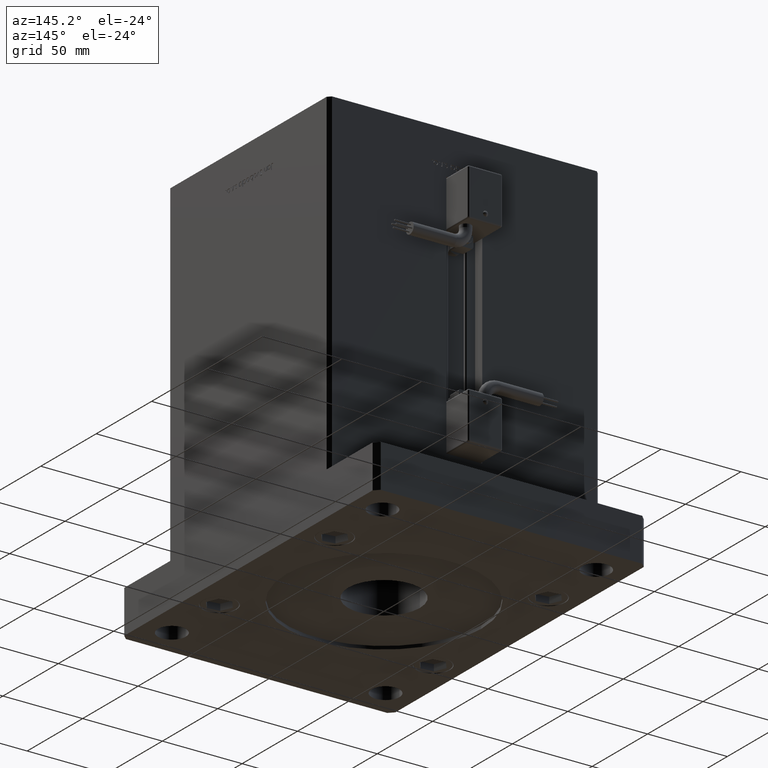
[diagram: clean part render]
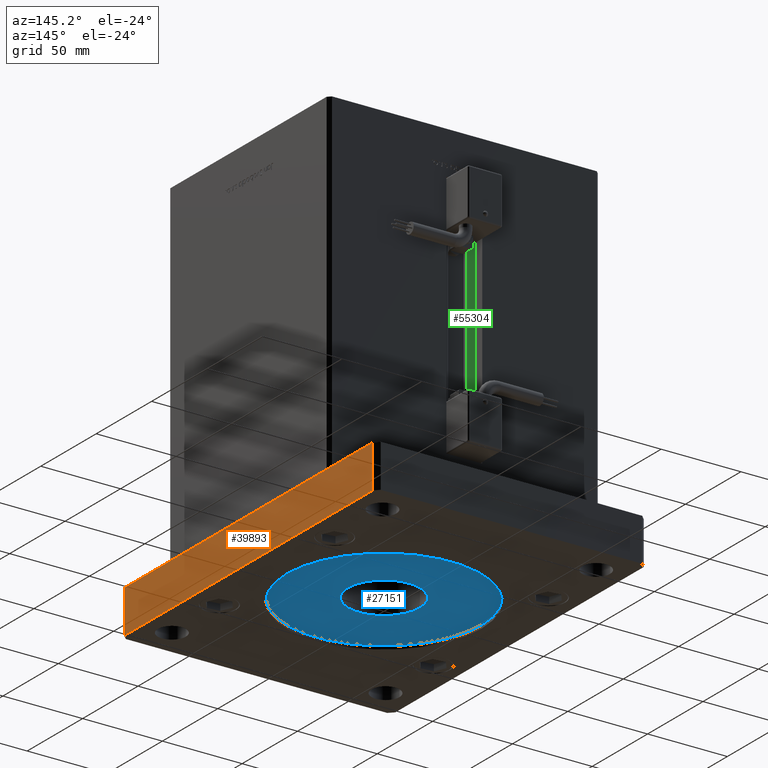
[diagram: same view with three faces highlighted in distinct colors, each labeled with its STEP entity id]
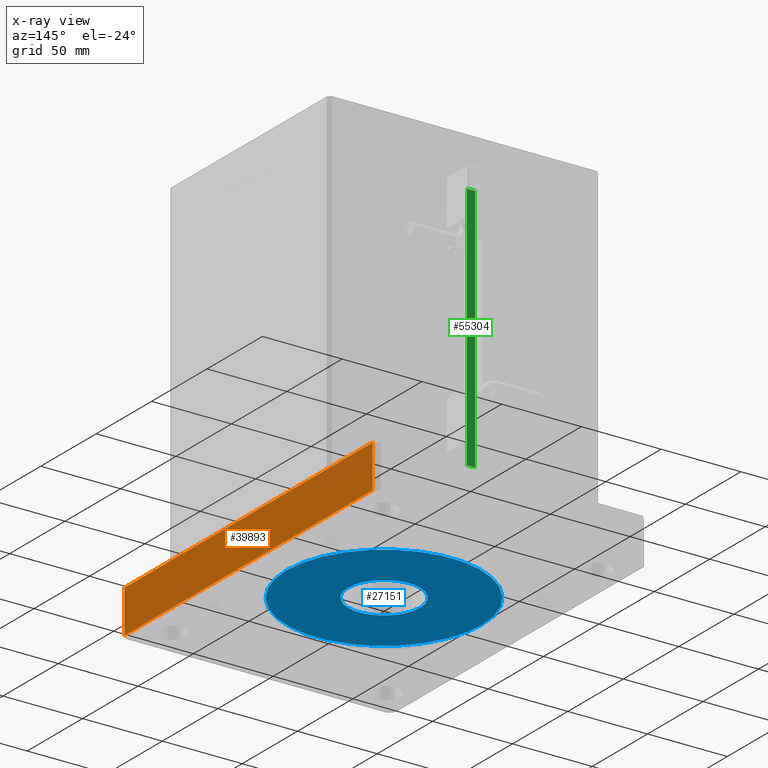
[diagram: x-ray of the same camera — body ghosted, the three highlighted faces saturated]
A machine part, auxiliary view with three faces highlighted in distinct colors.
The next image is the same camera in x-ray (body ghosted, the three faces saturated) — at least one of them is partly hidden behind the body in this view.
Their STEP definitions:

[orange] entity #39893 — the highlighted planar face has unit normal (-1, 0, 0).
#1507 = AXIS2_PLACEMENT_3D ( 'NONE', #36456, #54688, #33015 ) ;
#2056 = DIRECTION ( 'NONE',  ( 0.000000000000000000, 1.000000000000000000, 0.000000000000000000 ) ) ;
#7297 = ORIENTED_EDGE ( 'NONE', *, *, #28435, .F. ) ;
#7803 = VERTEX_POINT ( 'NONE', #39460 ) ;
#11459 = EDGE_LOOP ( 'NONE', ( #16509, #23719, #7297, #39940 ) ) ;
#12629 = DIRECTION ( 'NONE',  ( -0.000000000000000000, -0.000000000000000000, -1.000000000000000000 ) ) ;
#16509 = ORIENTED_EDGE ( 'NONE', *, *, #27678, .T. ) ;
#16625 = EDGE_CURVE ( 'NONE', #22920, #7803, #26181, .T. ) ;
#17377 = CARTESIAN_POINT ( 'NONE',  ( 85.00000000000001421, 112.0000000000000142, 27.00000000000000000 ) ) ;
#19167 = CARTESIAN_POINT ( 'NONE',  ( 85.00000000000001421, -111.9999999999999005, 27.00000000000000000 ) ) ;
#19940 = VECTOR ( 'NONE', #12629, 1000.000000000000000 ) ;
#22920 = VERTEX_POINT ( 'NONE', #44842 ) ;
#23333 = PLANE ( 'NONE',  #1507 ) ;
#23719 = ORIENTED_EDGE ( 'NONE', *, *, #41602, .F. ) ;
#25333 = DIRECTION ( 'NONE',  ( -0.000000000000000000, -0.000000000000000000, -1.000000000000000000 ) ) ;
#25747 = LINE ( 'NONE', #26316, #19940 ) ;
#26181 = LINE ( 'NONE', #43601, #41035 ) ;
#26316 = CARTESIAN_POINT ( 'NONE',  ( 85.00000000000001421, 112.0000000000000142, 27.00000000000000000 ) ) ;
#27093 = VERTEX_POINT ( 'NONE', #17377 ) ;
#27678 = EDGE_CURVE ( 'NONE', #7803, #28239, #28254, .T. ) ;
#28239 = VERTEX_POINT ( 'NONE', #52016 ) ;
#28254 = LINE ( 'NONE', #36814, #35865 ) ;
#28301 = LINE ( 'NONE', #19167, #54034 ) ;
#28435 = EDGE_CURVE ( 'NONE', #22920, #27093, #28301, .T. ) ;
#33015 = DIRECTION ( 'NONE',  ( 0.000000000000000000, 0.000000000000000000, 1.000000000000000000 ) ) ;
#35865 = VECTOR ( 'NONE', #45940, 1000.000000000000000 ) ;
#36456 = CARTESIAN_POINT ( 'NONE',  ( 85.00000000000001421, -111.9999999999999005, 27.00000000000000000 ) ) ;
#36814 = CARTESIAN_POINT ( 'NONE',  ( 85.00000000000001421, -111.9999999999999005, 0.000000000000000000 ) ) ;
#39460 = CARTESIAN_POINT ( 'NONE',  ( 85.00000000000001421, -111.9999999999999005, 0.000000000000000000 ) ) ;
#39893 = ADVANCED_FACE ( 'NONE', ( #45028 ), #23333, .F. ) ;
#39940 = ORIENTED_EDGE ( 'NONE', *, *, #16625, .T. ) ;
#41035 = VECTOR ( 'NONE', #25333, 1000.000000000000000 ) ;
#41602 = EDGE_CURVE ( 'NONE', #27093, #28239, #25747, .T. ) ;
#43601 = CARTESIAN_POINT ( 'NONE',  ( 85.00000000000001421, -111.9999999999999005, 27.00000000000000000 ) ) ;
#44842 = CARTESIAN_POINT ( 'NONE',  ( 85.00000000000001421, -111.9999999999999005, 27.00000000000000000 ) ) ;
#45028 = FACE_OUTER_BOUND ( 'NONE', #11459, .T. ) ;
#45940 = DIRECTION ( 'NONE',  ( 0.000000000000000000, 1.000000000000000000, 0.000000000000000000 ) ) ;
#52016 = CARTESIAN_POINT ( 'NONE',  ( 85.00000000000001421, 112.0000000000000142, 0.000000000000000000 ) ) ;
#54034 = VECTOR ( 'NONE', #2056, 1000.000000000000000 ) ;
#54688 = DIRECTION ( 'NONE',  ( -1.000000000000000000, 0.000000000000000000, 0.000000000000000000 ) ) ;

[blue] entity #27151 — the highlighted planar face has unit normal (0, 0, -1).
#284 = CIRCLE ( 'NONE', #46747, 61.00000000000000000 ) ;
#1706 = DIRECTION ( 'NONE',  ( -1.000000000000000000, 0.000000000000000000, 0.000000000000000000 ) ) ;
#3041 = ORIENTED_EDGE ( 'NONE', *, *, #52864, .T. ) ;
#3743 = EDGE_CURVE ( 'NONE', #21559, #17177, #12586, .T. ) ;
#6581 = CARTESIAN_POINT ( 'NONE',  ( -22.50000000000000355, 2.755455298081545172E-15, 2.000000000000000000 ) ) ;
#7914 = CARTESIAN_POINT ( 'NONE',  ( 0.000000000000000000, 0.000000000000000000, 2.000000000000000000 ) ) ;
#8970 = EDGE_CURVE ( 'NONE', #17177, #21559, #31907, .T. ) ;
#9100 = DIRECTION ( 'NONE',  ( -1.000000000000000000, 0.000000000000000000, -0.000000000000000000 ) ) ;
#10352 = EDGE_LOOP ( 'NONE', ( #32741, #48474 ) ) ;
#12413 = AXIS2_PLACEMENT_3D ( 'NONE', #21010, #29576, #34131 ) ;
#12586 = CIRCLE ( 'NONE', #17144, 22.50000000000000355 ) ;
#13369 = CARTESIAN_POINT ( 'NONE',  ( 0.000000000000000000, 0.000000000000000000, 2.000000000000000000 ) ) ;
#15655 = ORIENTED_EDGE ( 'NONE', *, *, #43581, .T. ) ;
#17144 = AXIS2_PLACEMENT_3D ( 'NONE', #7914, #25301, #1706 ) ;
#17177 = VERTEX_POINT ( 'NONE', #6581 ) ;
#21010 = CARTESIAN_POINT ( 'NONE',  ( 0.000000000000000000, 0.000000000000000000, 2.000000000000000000 ) ) ;
#21559 = VERTEX_POINT ( 'NONE', #42361 ) ;
#23969 = DIRECTION ( 'NONE',  ( -1.000000000000000000, 0.000000000000000000, 0.000000000000000000 ) ) ;
#24568 = EDGE_LOOP ( 'NONE', ( #15655, #3041 ) ) ;
#24600 = CARTESIAN_POINT ( 'NONE',  ( 61.00000000000000000, 7.470345474798855081E-15, 2.000000000000000000 ) ) ;
#25301 = DIRECTION ( 'NONE',  ( -0.000000000000000000, -0.000000000000000000, 1.000000000000000000 ) ) ;
#26665 = VERTEX_POINT ( 'NONE', #32023 ) ;
#26785 = FACE_OUTER_BOUND ( 'NONE', #24568, .T. ) ;
#27151 = ADVANCED_FACE ( 'NONE', ( #26785, #35050 ), #52437, .T. ) ;
#27967 = CARTESIAN_POINT ( 'NONE',  ( 0.000000000000000000, 0.000000000000000000, 2.000000000000000000 ) ) ;
#29576 = DIRECTION ( 'NONE',  ( 0.000000000000000000, 0.000000000000000000, -1.000000000000000000 ) ) ;
#29902 = DIRECTION ( 'NONE',  ( -1.000000000000000000, 0.000000000000000000, 0.000000000000000000 ) ) ;
#31907 = CIRCLE ( 'NONE', #55594, 22.50000000000000355 ) ;
#32023 = CARTESIAN_POINT ( 'NONE',  ( -61.00000000000000000, 0.000000000000000000, 2.000000000000000000 ) ) ;
#32523 = DIRECTION ( 'NONE',  ( 0.000000000000000000, 0.000000000000000000, -1.000000000000000000 ) ) ;
#32741 = ORIENTED_EDGE ( 'NONE', *, *, #3743, .T. ) ;
#33884 = DIRECTION ( 'NONE',  ( -0.000000000000000000, -0.000000000000000000, 1.000000000000000000 ) ) ;
#34131 = DIRECTION ( 'NONE',  ( -1.000000000000000000, 0.000000000000000000, 0.000000000000000000 ) ) ;
#35050 = FACE_BOUND ( 'NONE', #10352, .T. ) ;
#37009 = CIRCLE ( 'NONE', #12413, 61.00000000000000000 ) ;
#42190 = AXIS2_PLACEMENT_3D ( 'NONE', #13369, #48183, #9100 ) ;
#42361 = CARTESIAN_POINT ( 'NONE',  ( 22.50000000000000355, 0.000000000000000000, 2.000000000000000000 ) ) ;
#43581 = EDGE_CURVE ( 'NONE', #26665, #55382, #284, .T. ) ;
#46747 = AXIS2_PLACEMENT_3D ( 'NONE', #27967, #32523, #23969 ) ;
#48183 = DIRECTION ( 'NONE',  ( 0.000000000000000000, 0.000000000000000000, -1.000000000000000000 ) ) ;
#48474 = ORIENTED_EDGE ( 'NONE', *, *, #8970, .T. ) ;
#51001 = CARTESIAN_POINT ( 'NONE',  ( 0.000000000000000000, 0.000000000000000000, 2.000000000000000000 ) ) ;
#52437 = PLANE ( 'NONE',  #42190 ) ;
#52864 = EDGE_CURVE ( 'NONE', #55382, #26665, #37009, .T. ) ;
#55382 = VERTEX_POINT ( 'NONE', #24600 ) ;
#55594 = AXIS2_PLACEMENT_3D ( 'NONE', #51001, #33884, #29902 ) ;

[green] entity #55304 — the highlighted planar face has unit normal (0, -1, 0).
#1021 = CARTESIAN_POINT ( 'NONE',  ( -6.183333333334001480, 65.99999999999998579, 0.000000000000000000 ) ) ;
#1437 = AXIS2_PLACEMENT_3D ( 'NONE', #42935, #17242, #25805 ) ;
#4669 = CARTESIAN_POINT ( 'NONE',  ( -6.183333333334001480, 65.99999999999998579, 0.000000000000000000 ) ) ;
#7300 = EDGE_CURVE ( 'NONE', #23026, #13751, #8446, .T. ) ;
#8446 = LINE ( 'NONE', #28992, #40024 ) ;
#8577 = LINE ( 'NONE', #51930, #56045 ) ;
#10409 = CARTESIAN_POINT ( 'NONE',  ( -6.183333333334001480, 65.99999999999998579, 0.000000000000000000 ) ) ;
#13751 = VERTEX_POINT ( 'NONE', #45327 ) ;
#17242 = DIRECTION ( 'NONE',  ( 2.739037067332161330E-15, -1.000000000000000000, 0.000000000000000000 ) ) ;
#18048 = DIRECTION ( 'NONE',  ( 1.000000000000000000, 2.739037067332160936E-15, -0.000000000000000000 ) ) ;
#18681 = LINE ( 'NONE', #10409, #44350 ) ;
#18850 = EDGE_LOOP ( 'NONE', ( #30535, #23088, #25278, #56252 ) ) ;
#23026 = VERTEX_POINT ( 'NONE', #25403 ) ;
#23088 = ORIENTED_EDGE ( 'NONE', *, *, #32107, .F. ) ;
#25278 = ORIENTED_EDGE ( 'NONE', *, *, #7300, .T. ) ;
#25403 = CARTESIAN_POINT ( 'NONE',  ( -11.25000000000000178, 65.99999999999997158, 0.000000000000000000 ) ) ;
#25805 = DIRECTION ( 'NONE',  ( 1.000000000000000000, 2.739037067332161330E-15, 0.000000000000000000 ) ) ;
#28992 = CARTESIAN_POINT ( 'NONE',  ( -11.25000000000000178, 65.99999999999997158, 0.000000000000000000 ) ) ;
#30535 = ORIENTED_EDGE ( 'NONE', *, *, #35501, .F. ) ;
#31818 = DIRECTION ( 'NONE',  ( -0.000000000000000000, -0.000000000000000000, 1.000000000000000000 ) ) ;
#32107 = EDGE_CURVE ( 'NONE', #23026, #34507, #35730, .T. ) ;
#34257 = DIRECTION ( 'NONE',  ( -1.000000000000000000, -2.739037067332161330E-15, 0.000000000000000000 ) ) ;
#34507 = VERTEX_POINT ( 'NONE', #1021 ) ;
#35204 = PLANE ( 'NONE',  #1437 ) ;
#35501 = EDGE_CURVE ( 'NONE', #34507, #52916, #18681, .T. ) ;
#35730 = LINE ( 'NONE', #4669, #51489 ) ;
#38132 = DIRECTION ( 'NONE',  ( -0.000000000000000000, -0.000000000000000000, 1.000000000000000000 ) ) ;
#40024 = VECTOR ( 'NONE', #38132, 1000.000000000000000 ) ;
#42935 = CARTESIAN_POINT ( 'NONE',  ( -6.183333333334001480, 65.99999999999998579, 0.000000000000000000 ) ) ;
#44350 = VECTOR ( 'NONE', #31818, 1000.000000000000000 ) ;
#45327 = CARTESIAN_POINT ( 'NONE',  ( -11.25000000000000178, 65.99999999999997158, 156.0000000000000000 ) ) ;
#46692 = CARTESIAN_POINT ( 'NONE',  ( -6.183333333334002369, 65.99999999999998579, 156.0000000000000000 ) ) ;
#49859 = EDGE_CURVE ( 'NONE', #52916, #13751, #8577, .T. ) ;
#51489 = VECTOR ( 'NONE', #18048, 1000.000000000000000 ) ;
#51930 = CARTESIAN_POINT ( 'NONE',  ( -1.807764464439226360E-13, 66.00000000000000000, 156.0000000000000000 ) ) ;
#52032 = FACE_OUTER_BOUND ( 'NONE', #18850, .T. ) ;
#52916 = VERTEX_POINT ( 'NONE', #46692 ) ;
#55304 = ADVANCED_FACE ( 'NONE', ( #52032 ), #35204, .F. ) ;
#56045 = VECTOR ( 'NONE', #34257, 1000.000000000000000 ) ;
#56252 = ORIENTED_EDGE ( 'NONE', *, *, #49859, .F. ) ;